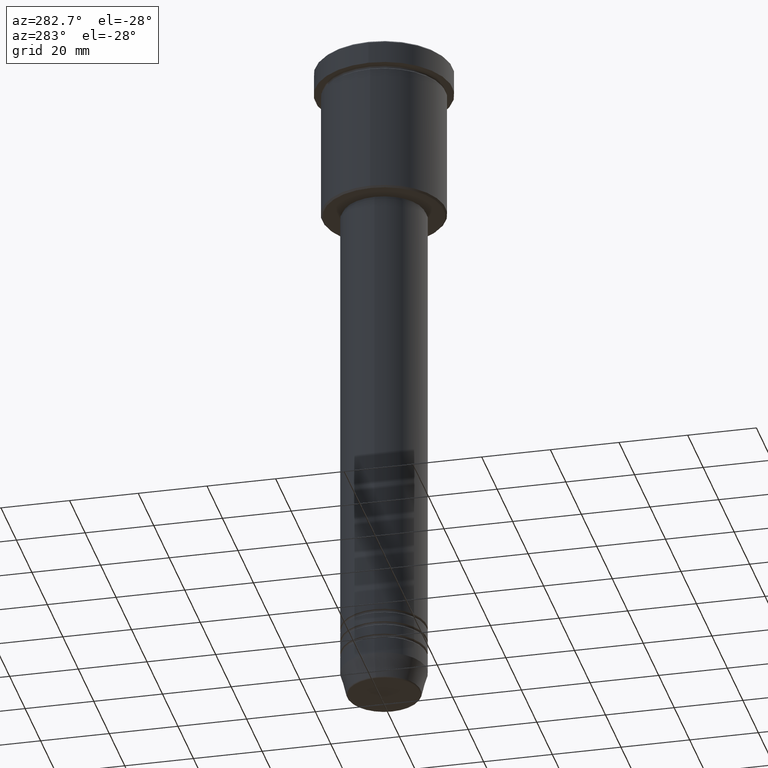
[diagram: clean part render]
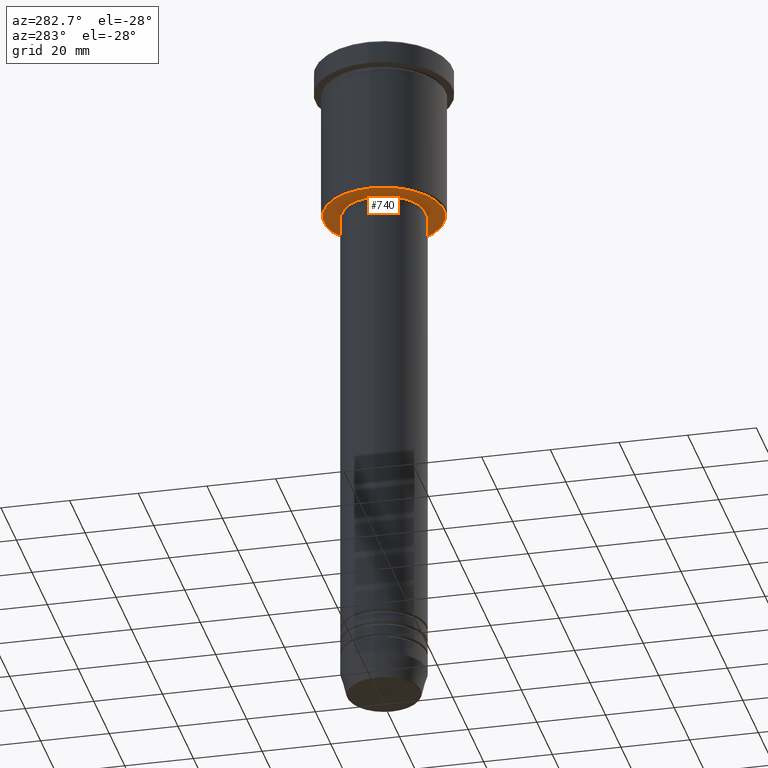
[diagram: same view with one face highlighted and labeled with its STEP entity id]
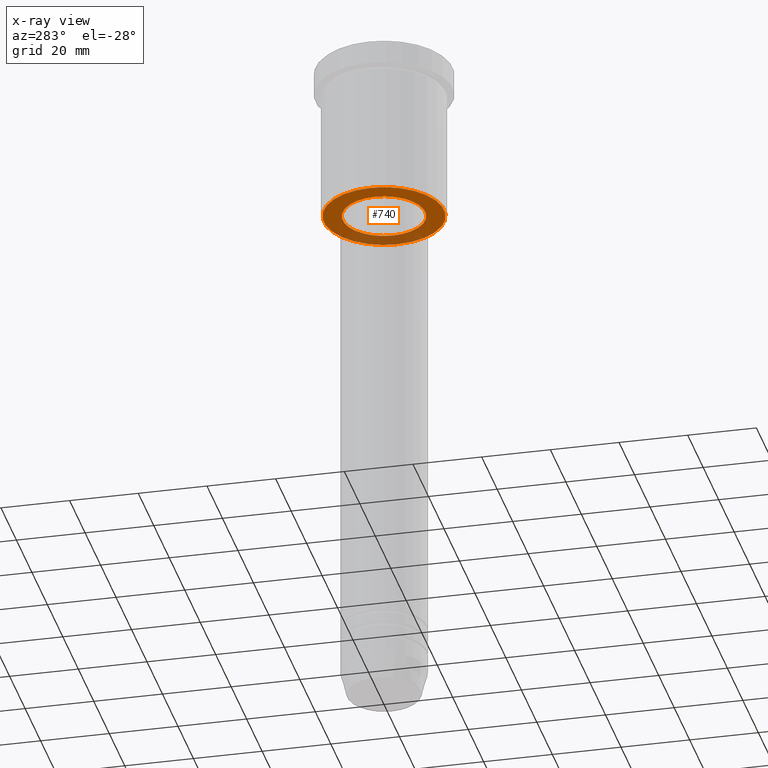
[diagram: x-ray of the same camera — body ghosted, the highlighted face saturated]
A machine part, auxiliary view. The second image highlights one B-rep face of the part: STEP entity #740.
The next image is the same camera in x-ray: the body ghosted, the highlighted face saturated — about 23% of this face is hidden behind the body in this view.
In plain terms, the highlighted planar face has unit normal (0, 0, -1).
Its self-contained STEP definition (entity closure, byte-faithful):
#7 = ORIENTED_EDGE ( 'NONE', *, *, #1033, .T. ) ;
#22 = ORIENTED_EDGE ( 'NONE', *, *, #123, .T. ) ;
#53 = AXIS2_PLACEMENT_3D ( 'NONE', #565, #361, #918 ) ;
#71 = VERTEX_POINT ( 'NONE', #1041 ) ;
#83 = CARTESIAN_POINT ( 'NONE',  ( -12.00000000000000000, 1.469576158976823947E-15, -46.00000000000000711 ) ) ;
#123 = EDGE_CURVE ( 'NONE', #794, #767, #733, .T. ) ;
#129 = DIRECTION ( 'NONE',  ( -0.000000000000000000, -0.000000000000000000, 1.000000000000000000 ) ) ;
#141 = ORIENTED_EDGE ( 'NONE', *, *, #492, .T. ) ;
#198 = CARTESIAN_POINT ( 'NONE',  ( 12.00000000000000000, 0.000000000000000000, -46.00000000000000711 ) ) ;
#246 = CARTESIAN_POINT ( 'NONE',  ( 17.50000000000001421, 0.000000000000000000, -46.00000000000000000 ) ) ;
#248 = ORIENTED_EDGE ( 'NONE', *, *, #771, .T. ) ;
#310 = DIRECTION ( 'NONE',  ( -1.000000000000000000, 0.000000000000000000, 0.000000000000000000 ) ) ;
#361 = DIRECTION ( 'NONE',  ( -0.000000000000000000, -0.000000000000000000, 1.000000000000000000 ) ) ;
#395 = AXIS2_PLACEMENT_3D ( 'NONE', #750, #488, #310 ) ;
#408 = DIRECTION ( 'NONE',  ( 1.000000000000000000, 0.000000000000000000, 0.000000000000000000 ) ) ;
#488 = DIRECTION ( 'NONE',  ( 0.000000000000000000, 0.000000000000000000, -1.000000000000000000 ) ) ;
#492 = EDGE_CURVE ( 'NONE', #718, #71, #911, .T. ) ;
#542 = FACE_OUTER_BOUND ( 'NONE', #616, .T. ) ;
#546 = PLANE ( 'NONE',  #1160 ) ;
#554 = FACE_BOUND ( 'NONE', #748, .T. ) ;
#565 = CARTESIAN_POINT ( 'NONE',  ( 0.000000000000000000, 0.000000000000000000, -46.00000000000000711 ) ) ;
#570 = CIRCLE ( 'NONE', #53, 12.00000000000000000 ) ;
#612 = CARTESIAN_POINT ( 'NONE',  ( 0.000000000000000000, 0.000000000000000000, -46.00000000000000000 ) ) ;
#616 = EDGE_LOOP ( 'NONE', ( #141, #7 ) ) ;
#626 = AXIS2_PLACEMENT_3D ( 'NONE', #612, #697, #978 ) ;
#697 = DIRECTION ( 'NONE',  ( 0.000000000000000000, 0.000000000000000000, -1.000000000000000000 ) ) ;
#718 = VERTEX_POINT ( 'NONE', #246 ) ;
#733 = CIRCLE ( 'NONE', #966, 12.00000000000000000 ) ;
#740 = ADVANCED_FACE ( 'NONE', ( #542, #554 ), #546, .T. ) ;
#748 = EDGE_LOOP ( 'NONE', ( #248, #22 ) ) ;
#750 = CARTESIAN_POINT ( 'NONE',  ( 0.000000000000000000, 0.000000000000000000, -46.00000000000000000 ) ) ;
#767 = VERTEX_POINT ( 'NONE', #198 ) ;
#771 = EDGE_CURVE ( 'NONE', #767, #794, #570, .T. ) ;
#794 = VERTEX_POINT ( 'NONE', #83 ) ;
#800 = DIRECTION ( 'NONE',  ( 0.000000000000000000, 0.000000000000000000, -1.000000000000000000 ) ) ;
#823 = CARTESIAN_POINT ( 'NONE',  ( 0.000000000000000000, 0.000000000000000000, -46.00000000000000711 ) ) ;
#911 = CIRCLE ( 'NONE', #395, 17.50000000000001421 ) ;
#918 = DIRECTION ( 'NONE',  ( 1.000000000000000000, 0.000000000000000000, 0.000000000000000000 ) ) ;
#966 = AXIS2_PLACEMENT_3D ( 'NONE', #823, #129, #408 ) ;
#978 = DIRECTION ( 'NONE',  ( -1.000000000000000000, 0.000000000000000000, 0.000000000000000000 ) ) ;
#1014 = DIRECTION ( 'NONE',  ( -1.000000000000000000, 0.000000000000000000, -0.000000000000000000 ) ) ;
#1033 = EDGE_CURVE ( 'NONE', #71, #718, #1048, .T. ) ;
#1041 = CARTESIAN_POINT ( 'NONE',  ( -17.50000000000001421, 2.173748068486552430E-15, -46.00000000000000000 ) ) ;
#1048 = CIRCLE ( 'NONE', #626, 17.50000000000001421 ) ;
#1111 = CARTESIAN_POINT ( 'NONE',  ( 0.000000000000000000, 18.00000000000000000, -46.00000000000000000 ) ) ;
#1160 = AXIS2_PLACEMENT_3D ( 'NONE', #1111, #800, #1014 ) ;